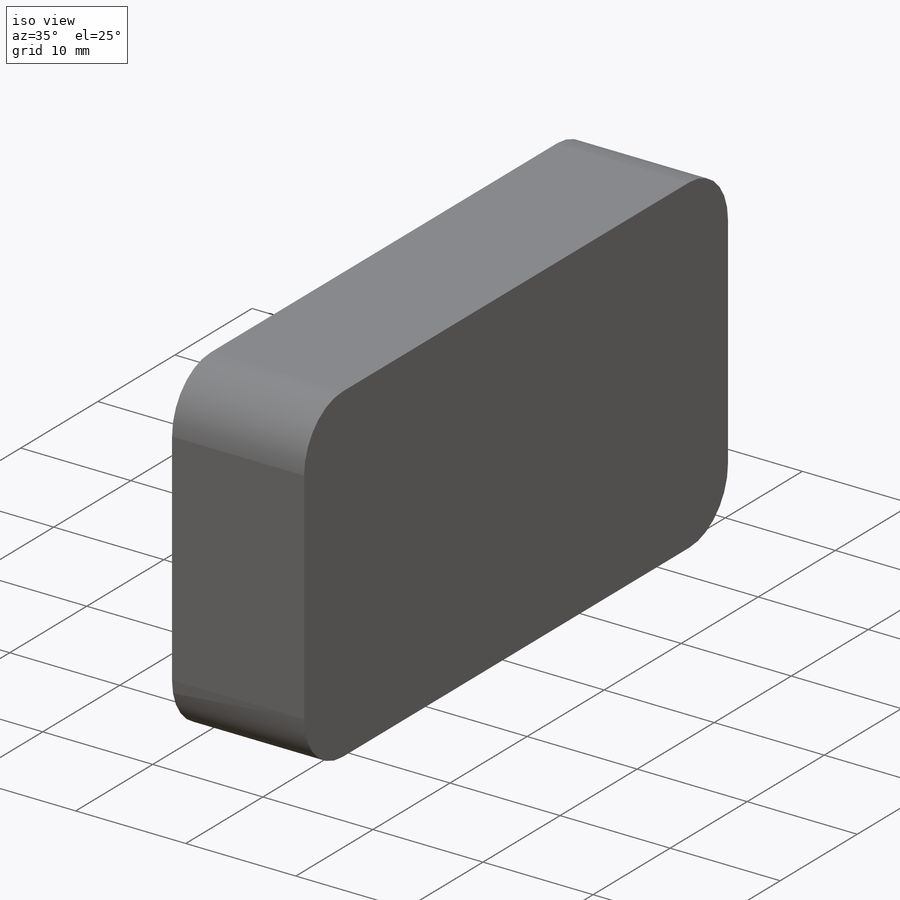
[diagram: iso view]
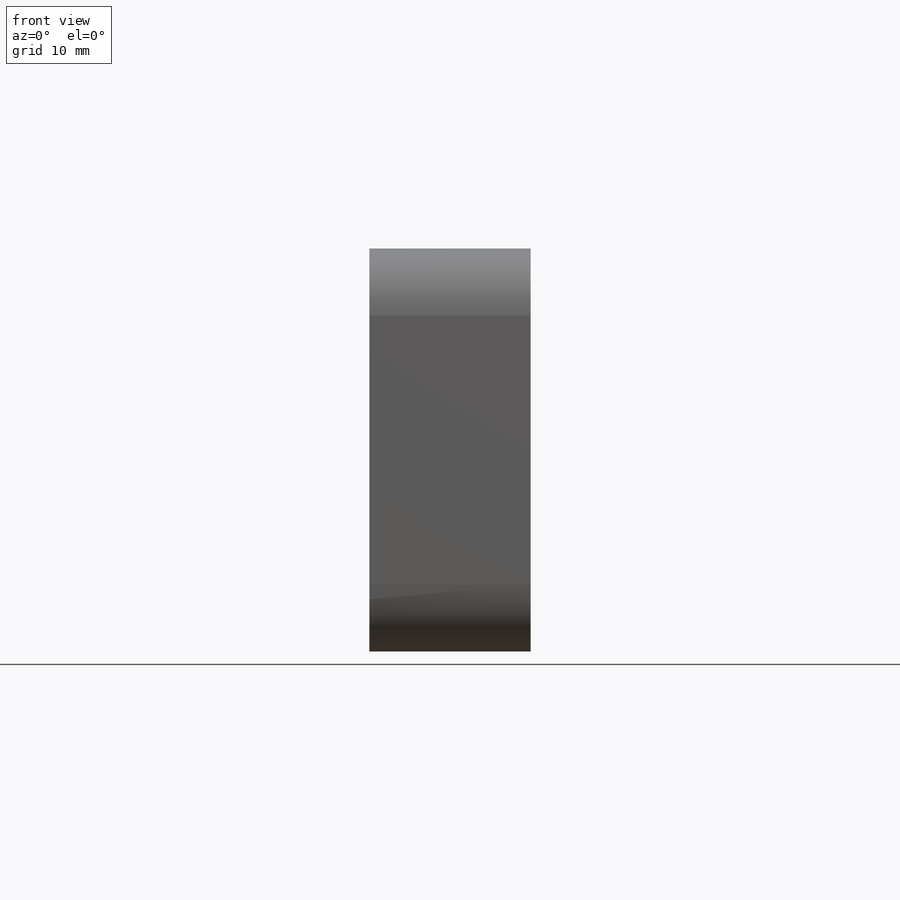
[diagram: front view]
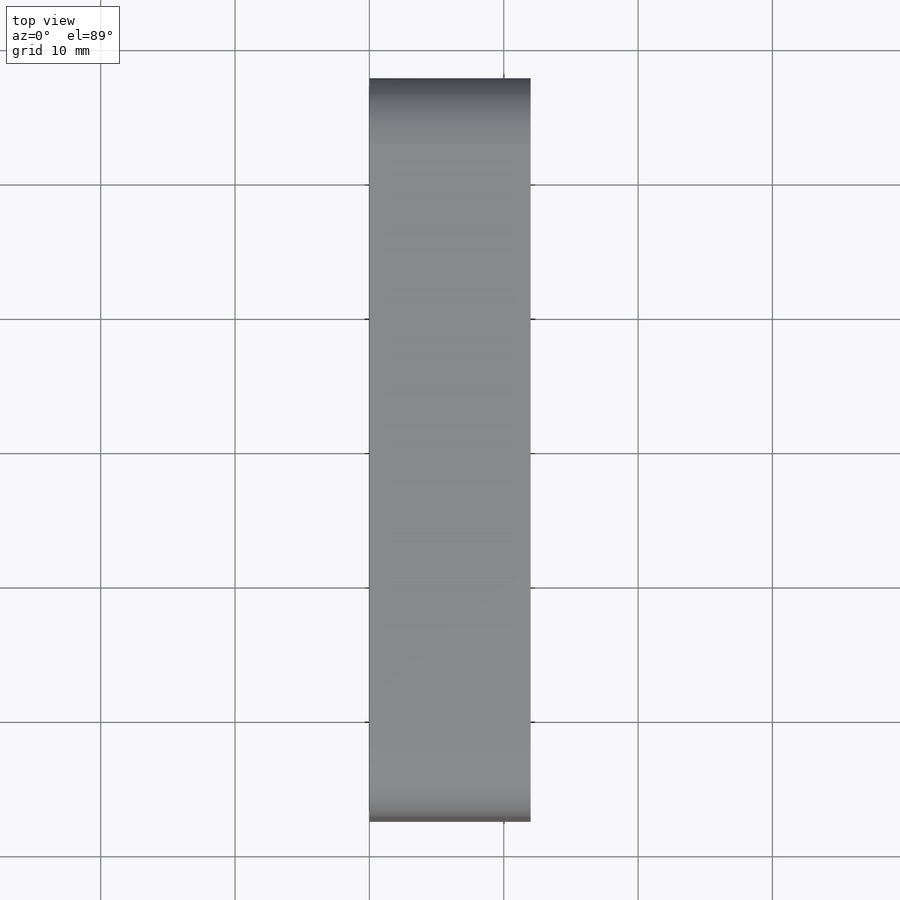
[diagram: top view]
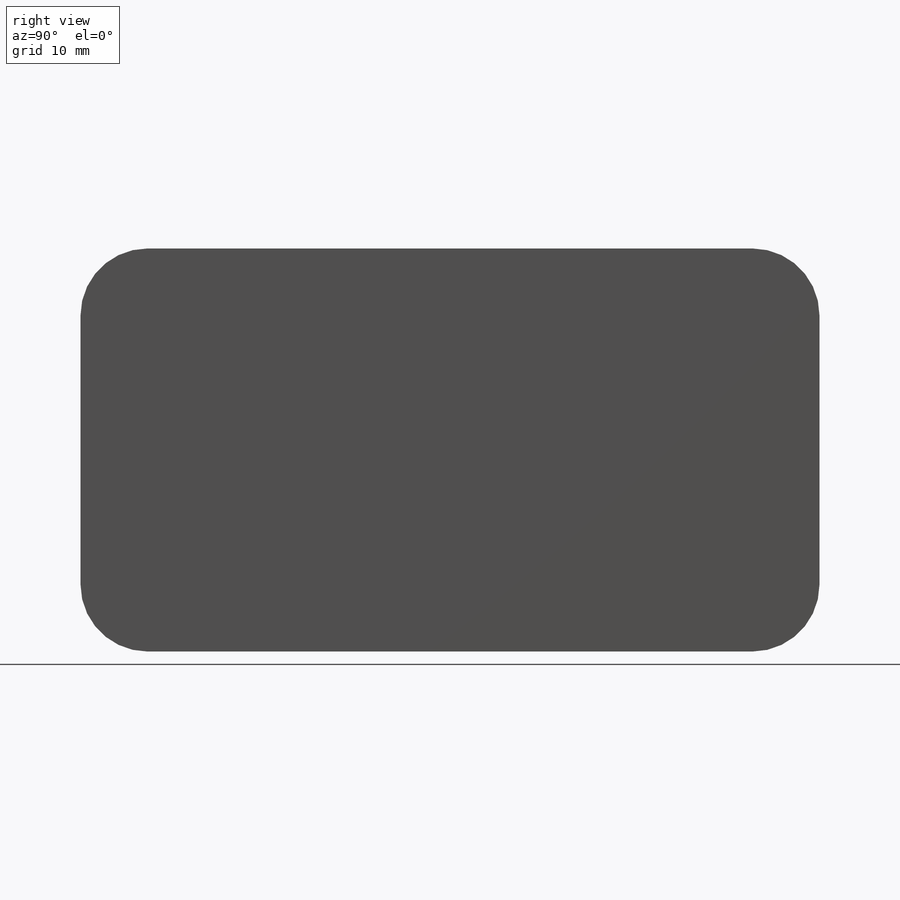
[diagram: right view]
SOLIDWORKS PART (.sldprt)
format: sldprt  version: not decoded by parser v0  size: 200,704 bytes
history: native  units: mm
features: plane x3, sketch x3, cut_extrude x2, material x1, extrude x1 (+10 scaffold rows collapsed)
feature tree (20):
  scaffold x10  (default folders/planes/origin — collapsed)
  material  "普通碳钢"
  plane  "前视基准面"
  plane  "上视基准面"
  plane  "右视基准面"
  sketch  "草图1"  dims[c1.D3=5.0mm c1.D1=~42.151857mm c1.D2=~79.787443mm c2.D1=55.0mm c2.D2=30.0mm]
  extrude  "凸台-拉伸1"  Depth=12mm
  sketch  "草图2"  dims[D1=16.0mm D2=16.0mm]
  cut_extrude  "切除-拉伸1"  Depth=8mm
  sketch  "草图3"  dims[D1=5.0mm D2=3.0mm]
  cut_extrude  "切除-拉伸2"  Depth=10mm
decode coverage: 6 of 6 modeling features carry decoded parameters
note: ~ marks probable driven/reference dimensions
note: suppression state not decoded; provenance and decode notes live in map.json
